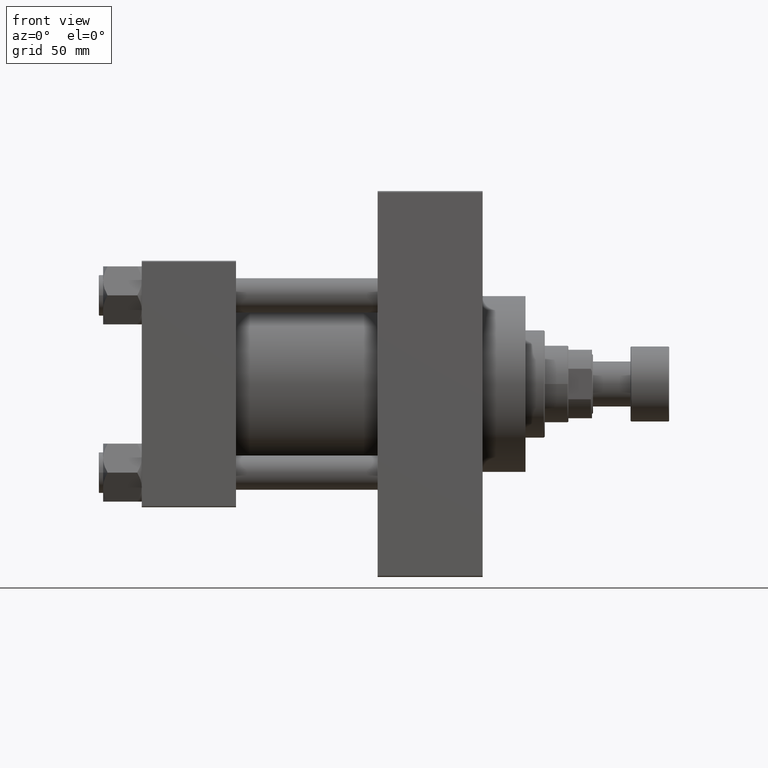
[diagram: clean part render]
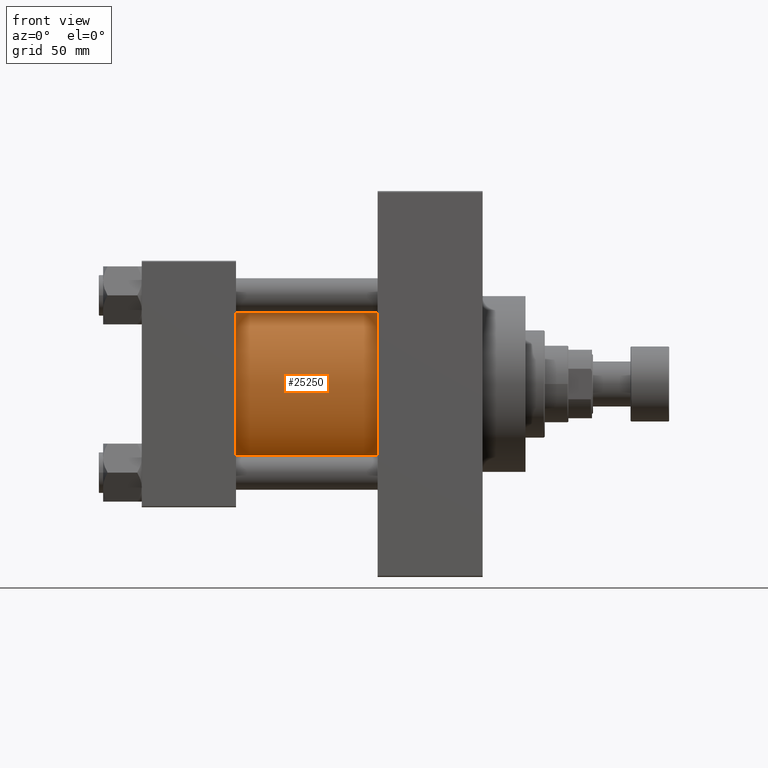
[diagram: same view with one face highlighted and labeled with its STEP entity id]
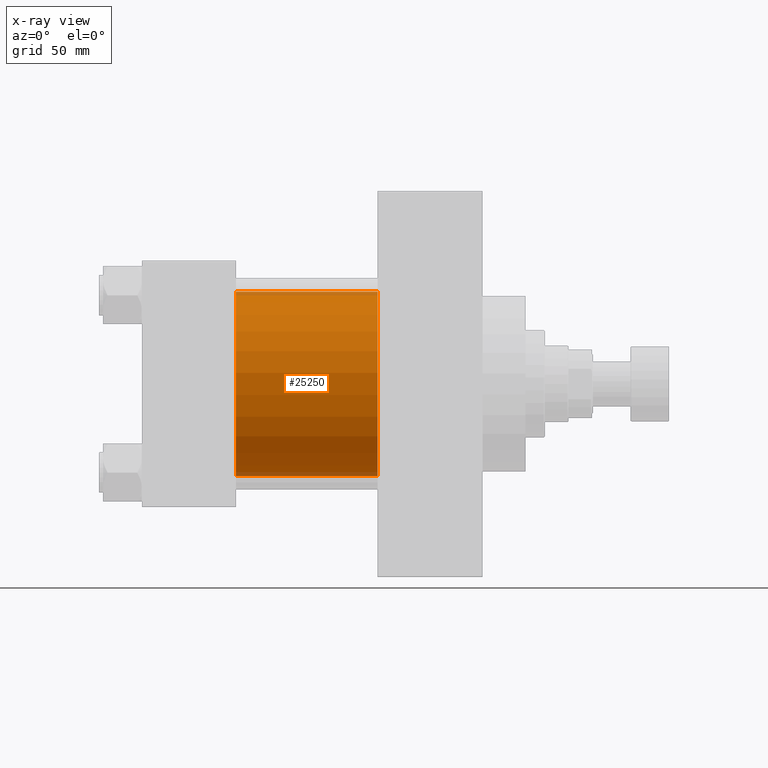
[diagram: x-ray of the same camera — body ghosted, the highlighted face saturated]
A machine part, front view. The second image highlights one B-rep face of the part: STEP entity #25250.
The next image is the same camera in x-ray: the body ghosted, the highlighted face saturated — about 4% of this face is hidden behind the body in this view.
In plain terms, the highlighted cylindrical surface (partial cylindrical patch) has radius 43 mm, axis along (-1, -0, -0).
Its self-contained STEP definition (entity closure, byte-faithful):
#333 = DIRECTION ( 'NONE',  ( 0.000000000000000000, 0.000000000000000000, 1.000000000000000000 ) ) ;
#2240 = CARTESIAN_POINT ( 'NONE',  ( 110.0000000000000000, -2.602085213965210642E-15, 43.00000000000000000 ) ) ;
#2245 = EDGE_CURVE ( 'NONE', #21691, #29288, #40107, .T. ) ;
#3618 = DIRECTION ( 'NONE',  ( -1.000000000000000000, -0.000000000000000000, -0.000000000000000000 ) ) ;
#4034 = ORIENTED_EDGE ( 'NONE', *, *, #32214, .T. ) ;
#7247 = ORIENTED_EDGE ( 'NONE', *, *, #44879, .F. ) ;
#11841 = CARTESIAN_POINT ( 'NONE',  ( 110.0000000000000000, -2.602085213965210642E-15, 43.00000000000000000 ) ) ;
#13402 = AXIS2_PLACEMENT_3D ( 'NONE', #40863, #3618, #18460 ) ;
#13600 = CARTESIAN_POINT ( 'NONE',  ( 110.0000000000000000, 2.663896022368408223E-15, -43.00000000000000000 ) ) ;
#16696 = EDGE_CURVE ( 'NONE', #17388, #27423, #31690, .T. ) ;
#17388 = VERTEX_POINT ( 'NONE', #11841 ) ;
#17986 = FACE_OUTER_BOUND ( 'NONE', #43480, .T. ) ;
#18460 = DIRECTION ( 'NONE',  ( 0.000000000000000000, 0.000000000000000000, 1.000000000000000000 ) ) ;
#18830 = DIRECTION ( 'NONE',  ( 1.000000000000000000, -0.000000000000000000, 0.000000000000000000 ) ) ;
#19767 = CARTESIAN_POINT ( 'NONE',  ( 44.00000000000000000, -2.602085213965210642E-15, 43.00000000000000000 ) ) ;
#21691 = VERTEX_POINT ( 'NONE', #45645 ) ;
#22113 = CYLINDRICAL_SURFACE ( 'NONE', #13402, 43.00000000000000000 ) ;
#22872 = AXIS2_PLACEMENT_3D ( 'NONE', #37327, #18830, #333 ) ;
#25250 = ADVANCED_FACE ( 'NONE', ( #17986 ), #22113, .T. ) ;
#25569 = CARTESIAN_POINT ( 'NONE',  ( 44.00000000000000000, 2.663896022368408223E-15, -43.00000000000000000 ) ) ;
#25967 = CIRCLE ( 'NONE', #22872, 43.00000000000000000 ) ;
#26265 = CIRCLE ( 'NONE', #32478, 43.00000000000000000 ) ;
#27423 = VERTEX_POINT ( 'NONE', #19767 ) ;
#29288 = VERTEX_POINT ( 'NONE', #25569 ) ;
#31690 = LINE ( 'NONE', #2240, #32884 ) ;
#31742 = ORIENTED_EDGE ( 'NONE', *, *, #16696, .T. ) ;
#32214 = EDGE_CURVE ( 'NONE', #27423, #29288, #25967, .T. ) ;
#32478 = AXIS2_PLACEMENT_3D ( 'NONE', #38851, #35444, #42739 ) ;
#32884 = VECTOR ( 'NONE', #46303, 1000.000000000000000 ) ;
#35444 = DIRECTION ( 'NONE',  ( 1.000000000000000000, 0.000000000000000000, 0.000000000000000000 ) ) ;
#37327 = CARTESIAN_POINT ( 'NONE',  ( 44.00000000000000000, -2.602085213965210642E-15, 0.000000000000000000 ) ) ;
#38851 = CARTESIAN_POINT ( 'NONE',  ( 110.0000000000000000, -2.602085213965210642E-15, 0.000000000000000000 ) ) ;
#40107 = LINE ( 'NONE', #13600, #41856 ) ;
#40863 = CARTESIAN_POINT ( 'NONE',  ( 110.0000000000000000, -2.602085213965210642E-15, 0.000000000000000000 ) ) ;
#41856 = VECTOR ( 'NONE', #43277, 1000.000000000000000 ) ;
#42739 = DIRECTION ( 'NONE',  ( 0.000000000000000000, 0.000000000000000000, -1.000000000000000000 ) ) ;
#43277 = DIRECTION ( 'NONE',  ( -1.000000000000000000, -0.000000000000000000, -0.000000000000000000 ) ) ;
#43480 = EDGE_LOOP ( 'NONE', ( #45974, #7247, #31742, #4034 ) ) ;
#44879 = EDGE_CURVE ( 'NONE', #17388, #21691, #26265, .T. ) ;
#45645 = CARTESIAN_POINT ( 'NONE',  ( 110.0000000000000000, 2.663896022368408223E-15, -43.00000000000000000 ) ) ;
#45974 = ORIENTED_EDGE ( 'NONE', *, *, #2245, .F. ) ;
#46303 = DIRECTION ( 'NONE',  ( -1.000000000000000000, -0.000000000000000000, -0.000000000000000000 ) ) ;